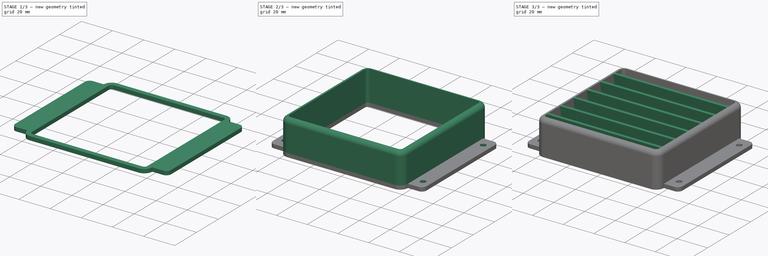
[diagram: build sequence overview — one tinted view per stage of 3, left to right]
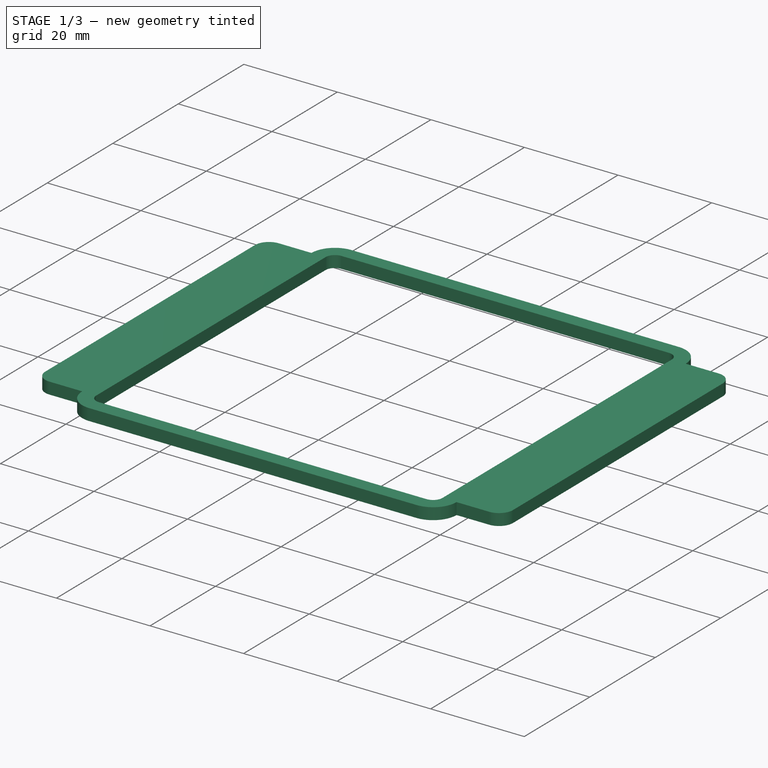
[diagram: stage 1 of 3 — iso view after this stage's code; geometry added in this stage tinted green]
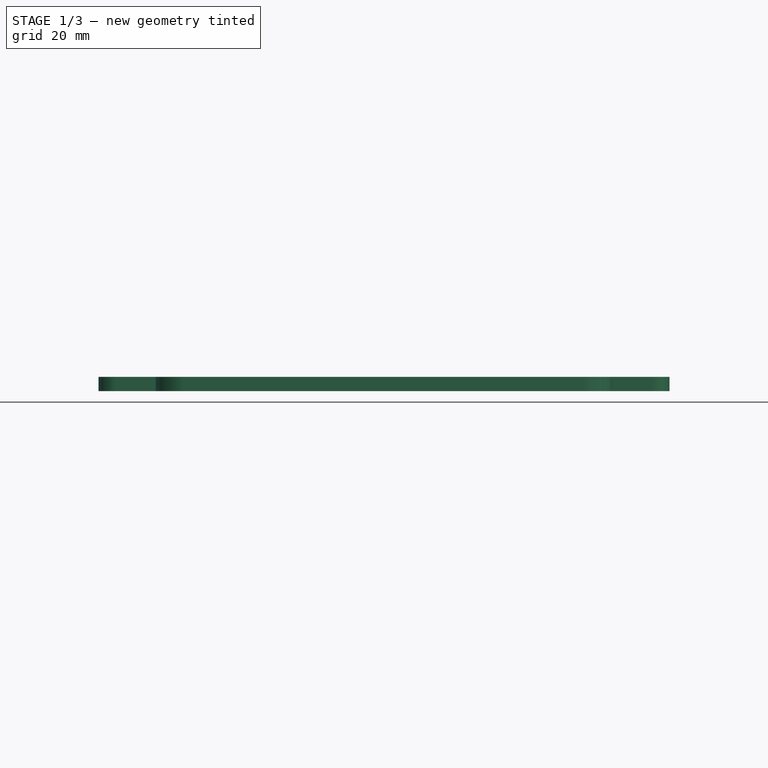
[diagram: stage 1 of 3 — front view after this stage's code; geometry added in this stage tinted green]
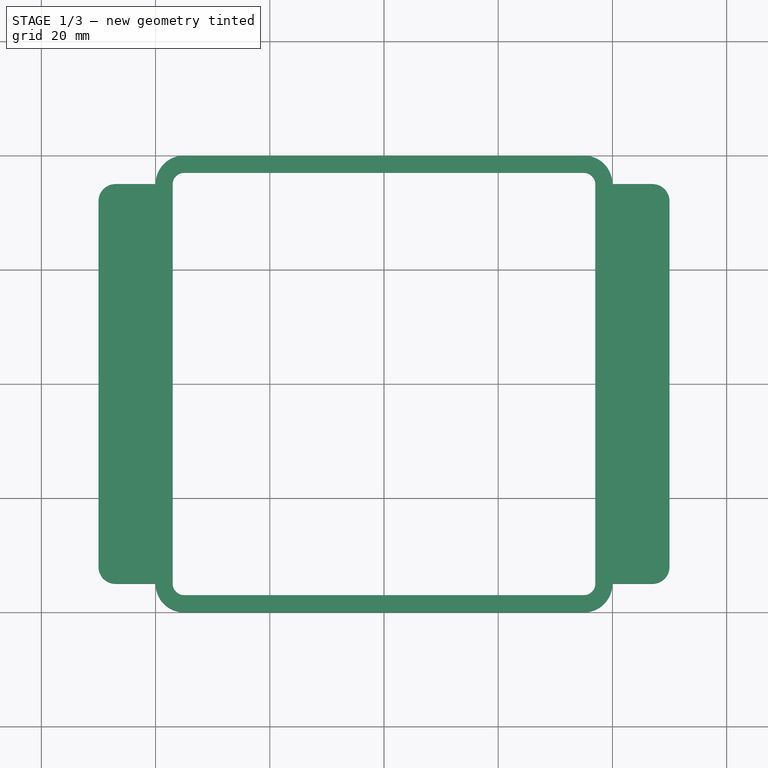
[diagram: stage 1 of 3 — top view after this stage's code; geometry added in this stage tinted green]
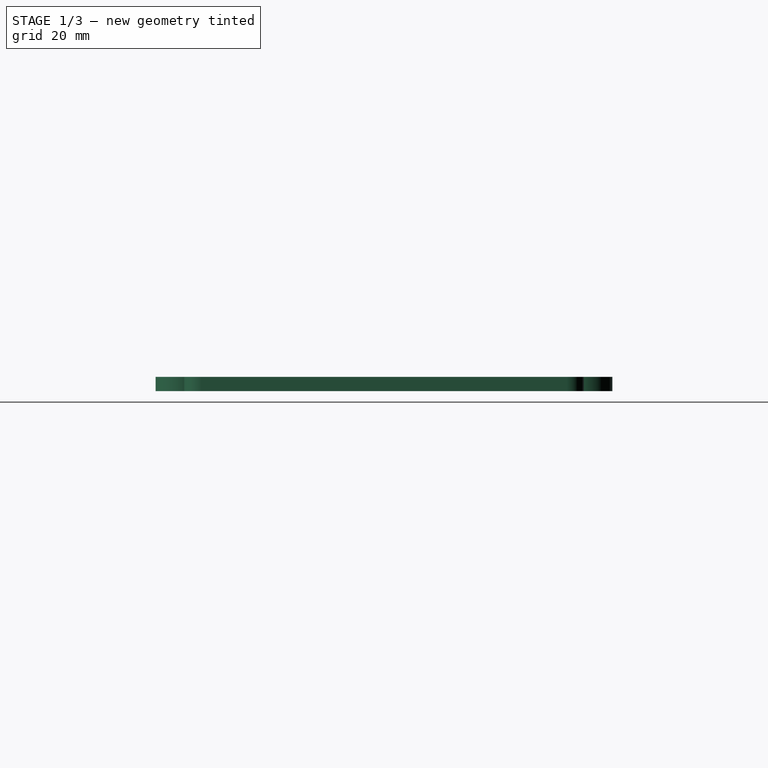
[diagram: stage 1 of 3 — right view after this stage's code; geometry added in this stage tinted green]
FCSTD DOCUMENT  (FreeCAD 0.20R29603 (Git))
Label: backwallVent
License: All rights reserved
LicenseURL: http://en.wikipedia.org/wiki/All_rights_reserved
objects: Sketcher::SketchObject×5, PartDesign::Pad×3, PartDesign::Fillet×2, Part::Part2DObjectPython×1, PartDesign::Pocket×1, PartDesign::LinearPattern×1, PartDesign::Body×1
note: 20 computed .brp shape members not serialized (recipe doc carries the construction recipe); baked Part::Feature solids carry a one-line shape summary decoded from their .brp

FEATURE [Sketcher::SketchObject] Sketch  label="master"
  FullyConstrained = true
  sketch-geometry (27):
    g0: ArcOfCircle CenterX=-35 CenterY=35 CenterZ=0 NormalX=0 NormalY=0 NormalZ=1 AngleXU=0 Radius=5 StartAngle=1.5708 EndAngle=3.14159
    g1: LineSegment StartX=-35 StartY=40 StartZ=0 EndX=35 EndY=40 EndZ=0
    g2: ArcOfCircle CenterX=35 CenterY=35 CenterZ=0 NormalX=0 NormalY=0 NormalZ=1 AngleXU=0 Radius=5 StartAngle=1e-16 EndAngle=1.5708
    g3: LineSegment StartX=40 StartY=35 StartZ=0 EndX=40 EndY=-35 EndZ=0
    g4: ArcOfCircle CenterX=35 CenterY=-35 CenterZ=0 NormalX=0 NormalY=0 NormalZ=1 AngleXU=0 Radius=5 StartAngle=4.71239 EndAngle=6.28319
    g5: LineSegment StartX=35 StartY=-40 StartZ=0 EndX=-35 EndY=-40 EndZ=0
    g6: ArcOfCircle CenterX=-35 CenterY=-35 CenterZ=0 NormalX=0 NormalY=0 NormalZ=1 AngleXU=0 Radius=5 StartAngle=3.14159 EndAngle=4.71239
    g7: LineSegment StartX=-40 StartY=-35 StartZ=0 EndX=-40 EndY=35 EndZ=0
    g8: GeomPoint X=40 Y=-40 Z=0
    g9: ArcOfCircle CenterX=-35 CenterY=35 CenterZ=0 NormalX=0 NormalY=0 NormalZ=1 AngleXU=0 Radius=2 StartAngle=1.5708 EndAngle=3.14159
    g10: LineSegment StartX=-35 StartY=37 StartZ=0 EndX=35 EndY=37 EndZ=0
    g11: ArcOfCircle CenterX=35 CenterY=35 CenterZ=0 NormalX=0 NormalY=0 NormalZ=1 AngleXU=0 Radius=2 StartAngle=-9e-16 EndAngle=1.5708
    g12: LineSegment StartX=37 StartY=35 StartZ=0 EndX=37 EndY=-35 EndZ=0
    g13: ArcOfCircle CenterX=35 CenterY=-35 CenterZ=0 NormalX=0 NormalY=0 NormalZ=1 AngleXU=0 Radius=2 StartAngle=4.71239 EndAngle=6.28319
    g14: LineSegment StartX=35 StartY=-37 StartZ=0 EndX=-35 EndY=-37 EndZ=0
    g15: ArcOfCircle CenterX=-35 CenterY=-35 CenterZ=0 NormalX=0 NormalY=0 NormalZ=1 AngleXU=0 Radius=2 StartAngle=3.14159 EndAngle=4.71239
    g16: LineSegment StartX=-37 StartY=-35 StartZ=0 EndX=-37 EndY=35 EndZ=0
    g17: GeomPoint X=-37 Y=37 Z=0
    g18: GeomPoint X=37 Y=-37 Z=0
    g19: LineSegment StartX=-40 StartY=35 StartZ=0 EndX=-50 EndY=35 EndZ=0
    g20: LineSegment StartX=-50 StartY=35 StartZ=0 EndX=-50 EndY=-35 EndZ=0
    g21: LineSegment StartX=-50 StartY=-35 StartZ=0 EndX=-40 EndY=-35 EndZ=0
    g22: LineSegment StartX=-40 StartY=-35 StartZ=0 EndX=-40 EndY=35 EndZ=0
    g23: LineSegment StartX=40 StartY=35 StartZ=0 EndX=50 EndY=35 EndZ=0
    g24: LineSegment StartX=50 StartY=35 StartZ=0 EndX=50 EndY=-35 EndZ=0
    g25: LineSegment StartX=50 StartY=-35 StartZ=0 EndX=40 EndY=-35 EndZ=0
    g26: LineSegment StartX=40 StartY=-35 StartZ=0 EndX=40 EndY=35 EndZ=0
  constraints (64):
    c: Tangent(g0,g1) = 1.5708
    c: Tangent(g1,g2) = 1.5708
    c: Tangent(g2,g3) = 1.5708
    c: Tangent(g3,g4) = 1.5708
    c: Tangent(g4,g5) = 1.5708
    c: Tangent(g5,g6) = 1.5708
    c: Tangent(g6,g7) = 1.5708
    c: Tangent(g7,g0) = 1.5708
    c: Horizontal(g1)
    c: Horizontal(g5)
    c: Vertical(g3)
    c: Vertical(g7)
    c: Equal(g0,g2)
    c: Equal(g2,g4)
    c: Equal(g4,g6)
    c: PointOnObject(g8,g3)
    c: PointOnObject(g8,g5)
    c: Symmetric(g4,g0,g-1)
    c: Equal(g7,g1)
    c: DistanceX(g0,g2) = 80
    c: Diameter(g0) = 10
    c: Tangent(g9,g10) = 1.5708
    c: Tangent(g10,g11) = 1.5708
    c: Tangent(g11,g12) = 1.5708
    c: Tangent(g12,g13) = 1.5708
    c: Tangent(g13,g14) = 1.5708
    c: Tangent(g14,g15) = 1.5708
    c: Tangent(g15,g16) = 1.5708
    c: Tangent(g16,g9) = 1.5708
    c: Horizontal(g10)
    c: Horizontal(g14)
    c: Vertical(g12)
    c: Vertical(g16)
    c: Equal(g11,g13)
    c: Equal(g13,g15)
    c: PointOnObject(g17,g10)
    c: PointOnObject(g17,g16)
    c: PointOnObject(g18,g12)
    c: PointOnObject(g18,g14)
    c: Symmetric(g13,g9,g-1)
    c: Equal(g16,g10)
    c: DistanceY(g5,g14) = 3
    c: Coincident(g19,g20)
    c: Coincident(g20,g21)
    c: Coincident(g21,g22)
    c: Coincident(g22,g19)
    c: Horizontal(g19)
    c: Horizontal(g21)
    c: Vertical(g20)
    c: Coincident(g19,g0)
    c: Coincident(g21,g6)
    c: Coincident(g23,g24)
    c: Coincident(g24,g25)
    c: Coincident(g25,g26)
    c: Coincident(g26,g23)
    c: Horizontal(g23)
    c: Horizontal(g25)
    c: Vertical(g24)
    c: Coincident(g23,g2)
    c: Coincident(g25,g3)
    c: Equal(g25,g21)
    c: DistanceX(g19,g19) = 10
    c: Vertical(g14,g5)
    c: Horizontal(g15,g6)
FEATURE [Part::Part2DObjectPython] Clone2D  label="master (2D)"  # Draft 2D object (typed FeaturePython)
  Fuse = false
  Objects = -> [Sketch]
  Scale = (1,1,1)
FEATURE [Sketcher::SketchObject] Sketch001
  ExternalGeometry = -> [Clone2D]
  FullyConstrained = true
  MapMode = 5
  Support = -> [XY_Plane]
  sketch-geometry (22):
    g0: LineSegment StartX=-50 StartY=35 StartZ=0 EndX=-40 EndY=35 EndZ=0
    g1: ArcOfCircle CenterX=-35 CenterY=35 CenterZ=0 NormalX=0 NormalY=0 NormalZ=1 AngleXU=0 Radius=5 StartAngle=1.5708 EndAngle=3.14159
    g2: LineSegment StartX=-35 StartY=40 StartZ=0 EndX=35 EndY=40 EndZ=0
    g3: ArcOfCircle CenterX=35 CenterY=35 CenterZ=0 NormalX=0 NormalY=0 NormalZ=1 AngleXU=0 Radius=5 StartAngle=-4.567e-12 EndAngle=1.5708
    g4: LineSegment StartX=40 StartY=35 StartZ=0 EndX=50 EndY=35 EndZ=0
    g5: LineSegment StartX=50 StartY=35 StartZ=0 EndX=50 EndY=-35 EndZ=0
    g6: LineSegment StartX=50 StartY=-35 StartZ=0 EndX=40 EndY=-35 EndZ=0
    g7: ArcOfCircle CenterX=35 CenterY=-35 CenterZ=0 NormalX=0 NormalY=0 NormalZ=1 AngleXU=0 Radius=5 StartAngle=4.71239 EndAngle=6.28319
    g8: LineSegment StartX=35 StartY=-40 StartZ=0 EndX=-35 EndY=-40 EndZ=0
    g9: ArcOfCircle CenterX=-35 CenterY=-35 CenterZ=0 NormalX=0 NormalY=0 NormalZ=1 AngleXU=0 Radius=5 StartAngle=3.14159 EndAngle=4.71239
    g10: LineSegment StartX=-50 StartY=35 StartZ=0 EndX=-50 EndY=-35 EndZ=0
    g11: LineSegment StartX=-50 StartY=-35 StartZ=0 EndX=-40 EndY=-35 EndZ=0
    g12: ArcOfCircle CenterX=-35 CenterY=35 CenterZ=0 NormalX=0 NormalY=0 NormalZ=1 AngleXU=0 Radius=2 StartAngle=1.5708 EndAngle=3.14159
    g13: LineSegment StartX=-35 StartY=37 StartZ=0 EndX=35 EndY=37 EndZ=0
    g14: ArcOfCircle CenterX=35 CenterY=35 CenterZ=0 NormalX=0 NormalY=0 NormalZ=1 AngleXU=0 Radius=2 StartAngle=1.6e-15 EndAngle=1.5708
    g15: LineSegment StartX=37 StartY=35 StartZ=0 EndX=37 EndY=-35 EndZ=0
    g16: ArcOfCircle CenterX=35 CenterY=-35 CenterZ=0 NormalX=0 NormalY=0 NormalZ=1 AngleXU=0 Radius=2 StartAngle=4.71239 EndAngle=6.28319
    g17: LineSegment StartX=35 StartY=-37 StartZ=0 EndX=-35 EndY=-37 EndZ=0
    g18: ArcOfCircle CenterX=-35 CenterY=-35 CenterZ=0 NormalX=0 NormalY=0 NormalZ=1 AngleXU=0 Radius=2 StartAngle=3.14159 EndAngle=4.71239
    g19: LineSegment StartX=-37 StartY=-35 StartZ=0 EndX=-37 EndY=35 EndZ=0
    g20: GeomPoint X=-37 Y=37 Z=0
    g21: GeomPoint X=37 Y=-37 Z=0
  constraints (47):
    c: Coincident(g-3,g0)
    c: Coincident(g0,g-8)
    c: Perpendicular(g0,g1) = 4.71239
    c: Coincident(g1,g-8)
    c: Coincident(g1,g2)
    c: Coincident(g2,g-5)
    c: Tangent(g2,g3) = 1.5708
    c: Coincident(g3,g-5)
    c: Coincident(g3,g4)
    c: Coincident(g4,g-4)
    c: Coincident(g4,g5)
    c: Coincident(g5,g-4)
    c: Coincident(g5,g6)
    c: Coincident(g6,g-6)
    c: Perpendicular(g6,g7) = 4.71239
    c: Coincident(g7,g-6)
    c: Coincident(g7,g8)
    c: Coincident(g8,g-7)
    c: Coincident(g9,g8)
    c: Coincident(g9,g-7)
    c: Coincident(g0,g10)
    c: Coincident(g10,g-3)
    c: Coincident(g10,g11)
    c: Coincident(g11,g-7)
    c: Horizontal(g9,g11)
    c: Tangent(g12,g13) = 1.5708
    c: Tangent(g13,g14) = 1.5708
    c: Tangent(g14,g15) = 1.5708
    c: Tangent(g15,g16) = 1.5708
    c: Tangent(g16,g17) = 1.5708
    c: Tangent(g17,g18) = 1.5708
    c: Tangent(g18,g19) = 1.5708
    c: Tangent(g19,g12) = 1.5708
    c: Horizontal(g13)
    c: Horizontal(g17)
    c: Vertical(g15)
    c: Vertical(g19)
    c: Equal(g12,g14)
    c: Equal(g14,g16)
    c: Equal(g16,g18)
    c: PointOnObject(g20,g13)
    c: PointOnObject(g20,g19)
    c: PointOnObject(g21,g15)
    c: PointOnObject(g21,g17)
    c: Symmetric(g16,g12,g-1)
    c: Equal(g12,g-9)
    c: Coincident(g12,g-9)
FEATURE [PartDesign::Pad] Pad  label="base"
  Direction = (0,0,1)
  Length = 2.5
  Length2 = 10
  Profile = -> Sketch001
  ReferenceAxis = -> Sketch001 [N_Axis]
  Type = 0
FEATURE [PartDesign::Fillet] Fillet  label="cornerFillet"
  Base = -> Pad [Edge32,Edge17,Edge1,Edge14]
  BaseFeature = -> Pad
  Radius = 3
  SupportTransform = false
  UseAllEdges = false
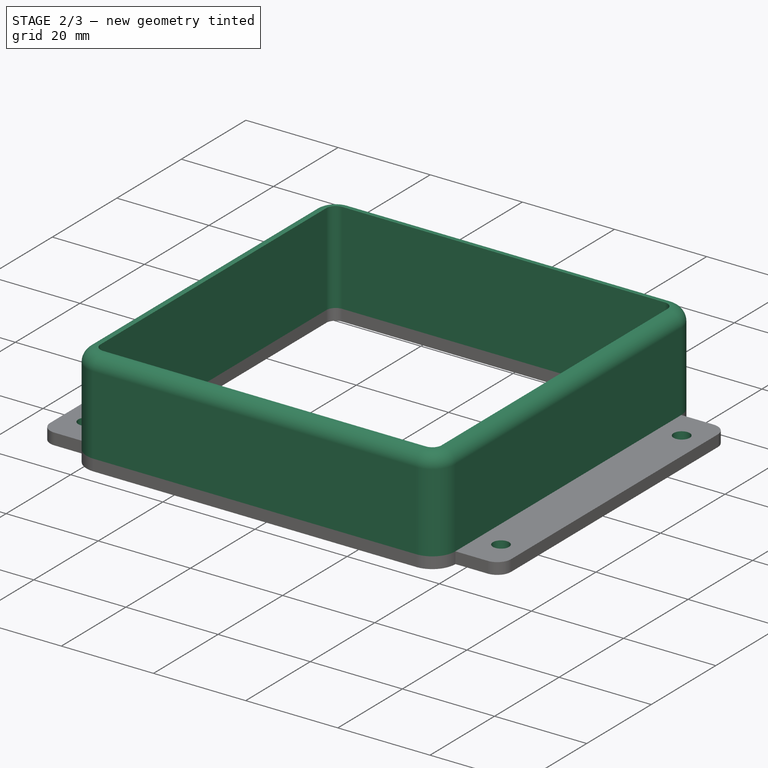
[diagram: stage 2 of 3 — iso view after this stage's code; geometry added in this stage tinted green]
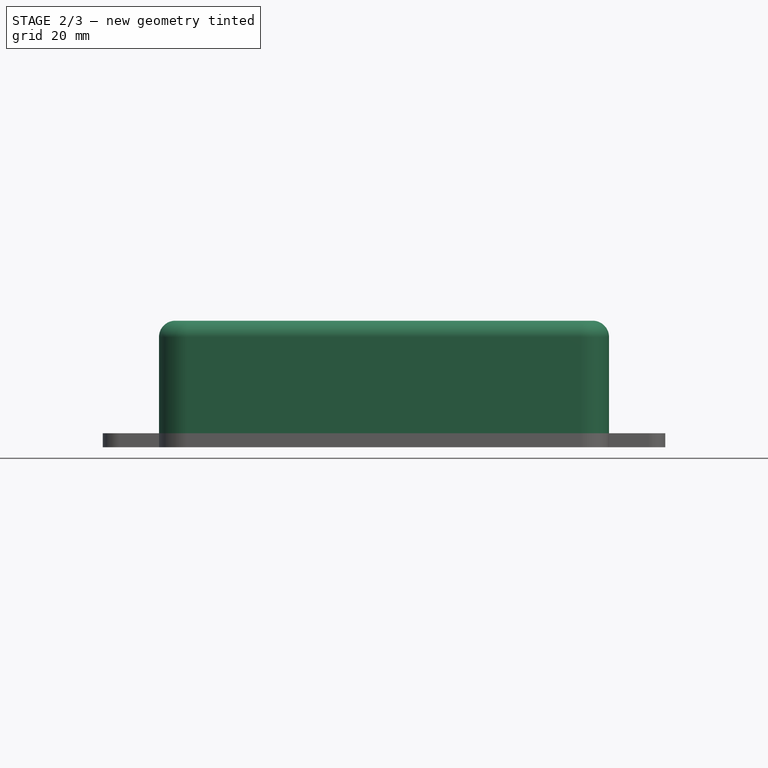
[diagram: stage 2 of 3 — front view after this stage's code; geometry added in this stage tinted green]
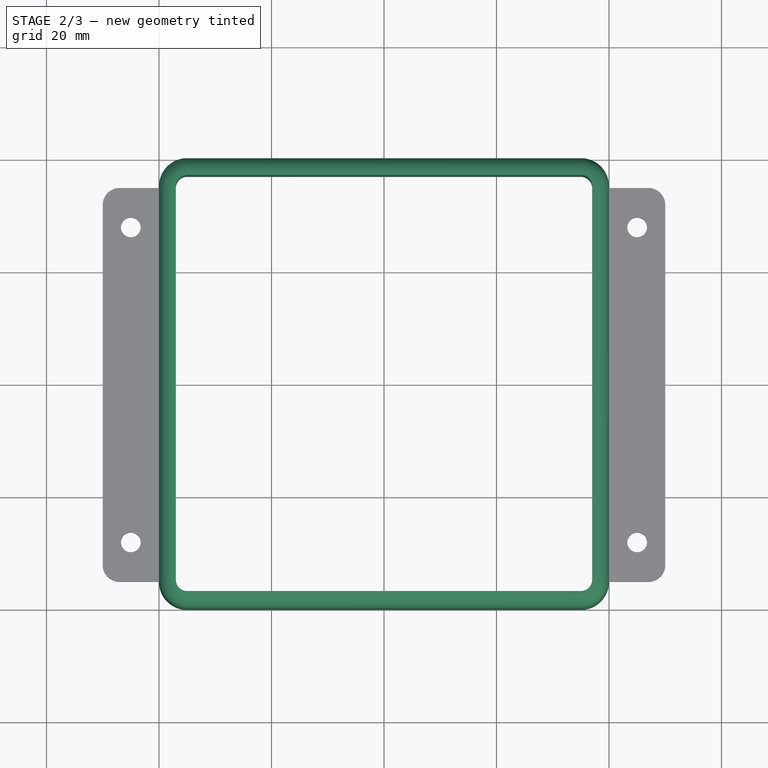
[diagram: stage 2 of 3 — top view after this stage's code; geometry added in this stage tinted green]
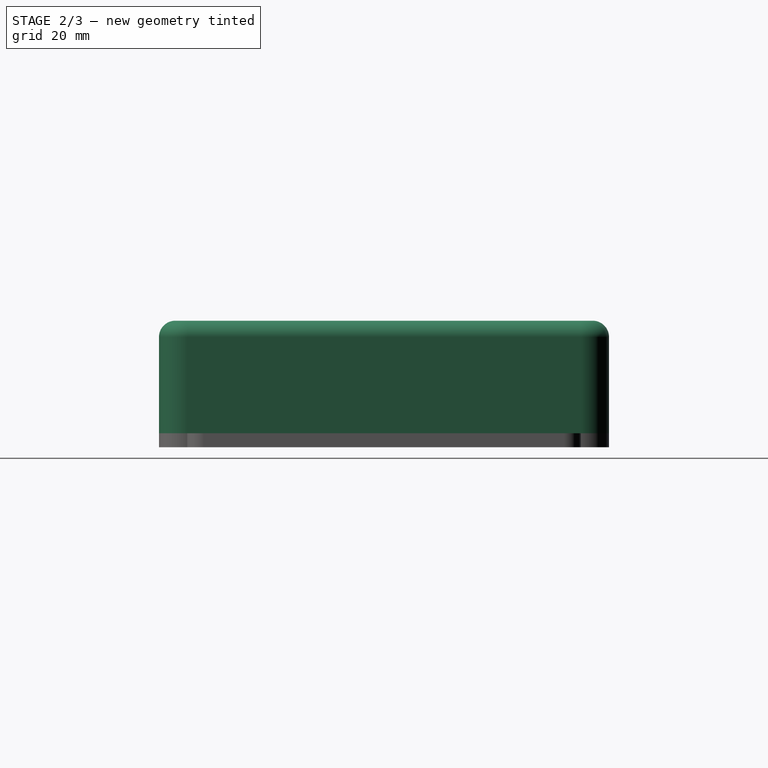
[diagram: stage 2 of 3 — right view after this stage's code; geometry added in this stage tinted green]
FEATURE [Sketcher::SketchObject] Sketch002
  ExternalGeometry = -> [Clone2D]
  FullyConstrained = true
  MapMode = 5
  Support = -> [XY_Plane]
  sketch-geometry (8):
    g0: Circle CenterX=-45 CenterY=28 CenterZ=0 NormalX=0 NormalY=0 NormalZ=1 AngleXU=0 Radius=1.75
    g1: Circle CenterX=-45 CenterY=-28 CenterZ=0 NormalX=0 NormalY=0 NormalZ=1 AngleXU=0 Radius=1.75
    g2: Circle CenterX=45 CenterY=-28 CenterZ=0 NormalX=0 NormalY=0 NormalZ=1 AngleXU=0 Radius=1.75
    g3: Circle CenterX=45 CenterY=28 CenterZ=0 NormalX=0 NormalY=0 NormalZ=1 AngleXU=0 Radius=1.75
    g4: LineSegment StartX=-45 StartY=28 StartZ=0 EndX=45 EndY=28 EndZ=0
    g5: LineSegment StartX=45 StartY=28 StartZ=0 EndX=45 EndY=-28 EndZ=0
    g6: LineSegment StartX=45 StartY=-28 StartZ=0 EndX=-45 EndY=-28 EndZ=0
    g7: LineSegment StartX=-45 StartY=-28 StartZ=0 EndX=-45 EndY=28 EndZ=0
  constraints (18):
    c: Coincident(g4,g5)
    c: Coincident(g5,g6)
    c: Coincident(g6,g7)
    c: Coincident(g7,g4)
    c: Horizontal(g4)
    c: Horizontal(g6)
    c: Vertical(g5)
    c: Symmetric(g4,g5,g-1)
    c: Symmetric(g-3,g-3,g7)
    c: Coincident(g0,g4)
    c: Coincident(g1,g6)
    c: Coincident(g2,g5)
    c: Coincident(g3,g4)
    c: Equal(g0,g1)
    c: Equal(g0,g2)
    c: Equal(g0,g3)
    c: Diameter(g0) = 3.5
    c: DistanceY(g7,g7) = 56
FEATURE [PartDesign::Pocket] Pocket  label="mountingholes_Pocket"
  BaseFeature = -> Fillet
  Direction = (0,0,-1)
  Length = 5
  Length2 = 5
  Midplane = true
  Profile = -> Sketch002
  ReferenceAxis = -> Sketch002 [N_Axis]
  Type = 1
FEATURE [Sketcher::SketchObject] Sketch003
  AttachmentOffset = pos=(0,0,2.5) rot=(0,0,1;0rad)
  ExternalGeometry = -> [Clone2D]
  FullyConstrained = true
  MapMode = 5
  Placement = pos=(0,0,2.5) rot=(0,0,1;0rad)
  Support = -> [XY_Plane]
  sketch-geometry (20):
    g0: ArcOfCircle CenterX=-35 CenterY=35 CenterZ=0 NormalX=0 NormalY=0 NormalZ=1 AngleXU=0 Radius=5 StartAngle=1.5708 EndAngle=3.14159
    g1: LineSegment StartX=-35 StartY=40 StartZ=0 EndX=35 EndY=40 EndZ=0
    g2: ArcOfCircle CenterX=35 CenterY=35 CenterZ=0 NormalX=0 NormalY=0 NormalZ=1 AngleXU=0 Radius=5 StartAngle=3e-16 EndAngle=1.5708
    g3: LineSegment StartX=40 StartY=35 StartZ=0 EndX=40 EndY=-35 EndZ=0
    g4: ArcOfCircle CenterX=35 CenterY=-35 CenterZ=0 NormalX=0 NormalY=0 NormalZ=1 AngleXU=0 Radius=5 StartAngle=4.71239 EndAngle=6.28319
    g5: LineSegment StartX=35 StartY=-40 StartZ=0 EndX=-35 EndY=-40 EndZ=0
    g6: ArcOfCircle CenterX=-35 CenterY=-35 CenterZ=0 NormalX=0 NormalY=0 NormalZ=1 AngleXU=0 Radius=5 StartAngle=3.14159 EndAngle=4.71239
    g7: LineSegment StartX=-40 StartY=-35 StartZ=0 EndX=-40 EndY=35 EndZ=0
    g8: GeomPoint X=-40 Y=40 Z=0
    g9: GeomPoint X=40 Y=-40 Z=0
    g10: ArcOfCircle CenterX=-35 CenterY=35 CenterZ=0 NormalX=0 NormalY=0 NormalZ=1 AngleXU=0 Radius=2 StartAngle=1.5708 EndAngle=3.14159
    g11: LineSegment StartX=-35 StartY=37 StartZ=0 EndX=35 EndY=37 EndZ=0
    g12: ArcOfCircle CenterX=35 CenterY=35 CenterZ=0 NormalX=0 NormalY=0 NormalZ=1 AngleXU=0 Radius=2 StartAngle=4e-16 EndAngle=1.5708
    g13: LineSegment StartX=37 StartY=35 StartZ=0 EndX=37 EndY=-35 EndZ=0
    g14: ArcOfCircle CenterX=35 CenterY=-35 CenterZ=0 NormalX=0 NormalY=0 NormalZ=1 AngleXU=0 Radius=2 StartAngle=4.71239 EndAngle=6.28319
    g15: LineSegment StartX=35 StartY=-37 StartZ=0 EndX=-35 EndY=-37 EndZ=0
    g16: ArcOfCircle CenterX=-35 CenterY=-35 CenterZ=0 NormalX=0 NormalY=0 NormalZ=1 AngleXU=0 Radius=2 StartAngle=3.14159 EndAngle=4.71239
    g17: LineSegment StartX=-37 StartY=-35 StartZ=0 EndX=-37 EndY=35 EndZ=0
    g18: GeomPoint X=-37 Y=37 Z=0
    g19: GeomPoint X=37 Y=-37 Z=0
  constraints (44):
    c: Tangent(g0,g1) = 1.5708
    c: Tangent(g1,g2) = 1.5708
    c: Tangent(g2,g3) = 1.5708
    c: Tangent(g3,g4) = 1.5708
    c: Tangent(g4,g5) = 1.5708
    c: Tangent(g5,g6) = 1.5708
    c: Tangent(g6,g7) = 1.5708
    c: Tangent(g7,g0) = 1.5708
    c: Horizontal(g1)
    c: Horizontal(g5)
    c: Vertical(g3)
    c: Vertical(g7)
    c: Equal(g0,g2)
    c: Equal(g2,g4)
    c: Equal(g4,g6)
    c: PointOnObject(g8,g1)
    c: PointOnObject(g8,g7)
    c: PointOnObject(g9,g3)
    c: PointOnObject(g9,g5)
    c: Symmetric(g0,g4,g-1)
    c: Coincident(g0,g-3)
    c: Equal(g0,g-3)
    c: Tangent(g10,g11) = 1.5708
    c: Tangent(g11,g12) = 1.5708
    c: Tangent(g12,g13) = 1.5708
    c: Tangent(g13,g14) = 1.5708
    c: Tangent(g14,g15) = 1.5708
    c: Tangent(g15,g16) = 1.5708
    c: Tangent(g16,g17) = 1.5708
    c: Tangent(g17,g10) = 1.5708
    c: Horizontal(g11)
    c: Horizontal(g15)
    c: Vertical(g13)
    c: Vertical(g17)
    c: Equal(g10,g12)
    c: Equal(g12,g14)
    c: Equal(g14,g16)
    c: PointOnObject(g18,g11)
    c: PointOnObject(g18,g17)
    c: PointOnObject(g19,g13)
    c: PointOnObject(g19,g15)
    c: Symmetric(g14,g10,g-1)
    c: Coincident(g10,g-4)
    c: Equal(g10,g-4)
FEATURE [PartDesign::Pad] Pad001  label="sidewalls_Pad001"
  BaseFeature = -> Pocket
  Direction = (0,0,1)
  Length = 20
  Length2 = 10
  Profile = -> Sketch003
  ReferenceAxis = -> Sketch003 [N_Axis]
  Type = 0
FEATURE [PartDesign::Fillet] Fillet001  label="frontFillet001"
  Base = -> Pad001 [Edge92]
  BaseFeature = -> Pad001
  Radius = 2.9
  SupportTransform = false
  UseAllEdges = false
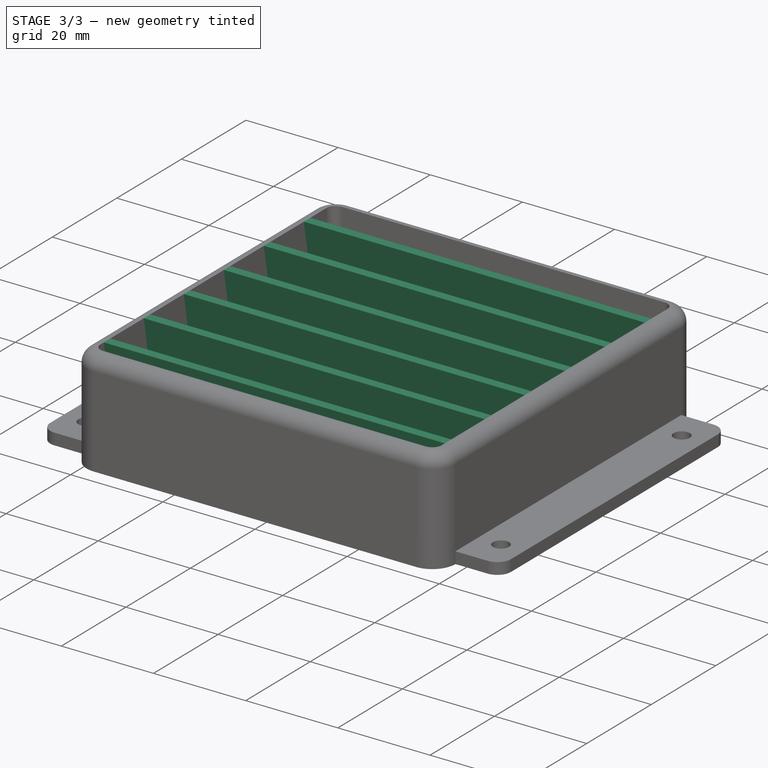
[diagram: stage 3 of 3 — iso view after this stage's code; geometry added in this stage tinted green]
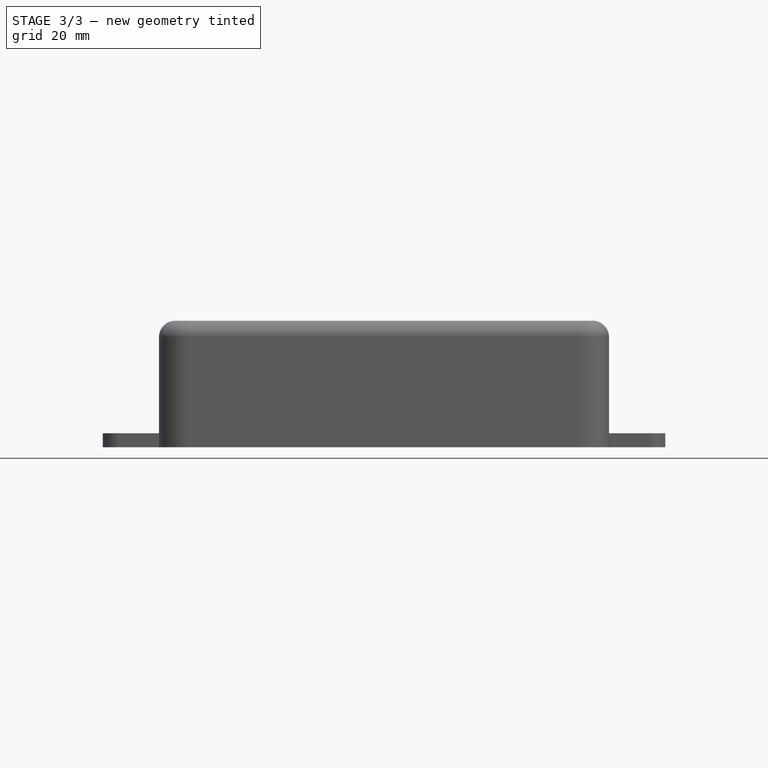
[diagram: stage 3 of 3 — front view after this stage's code; geometry added in this stage tinted green]
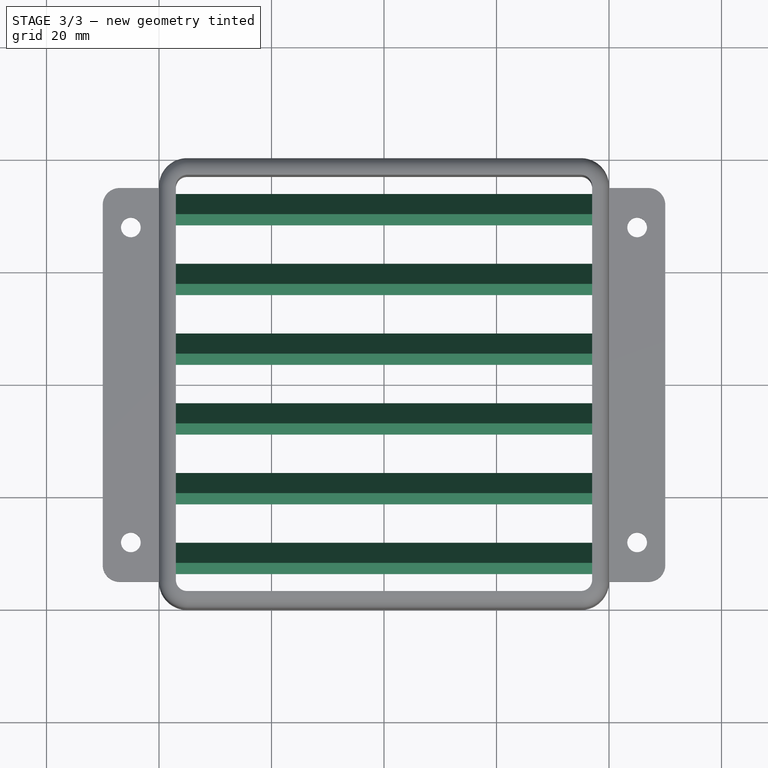
[diagram: stage 3 of 3 — top view after this stage's code; geometry added in this stage tinted green]
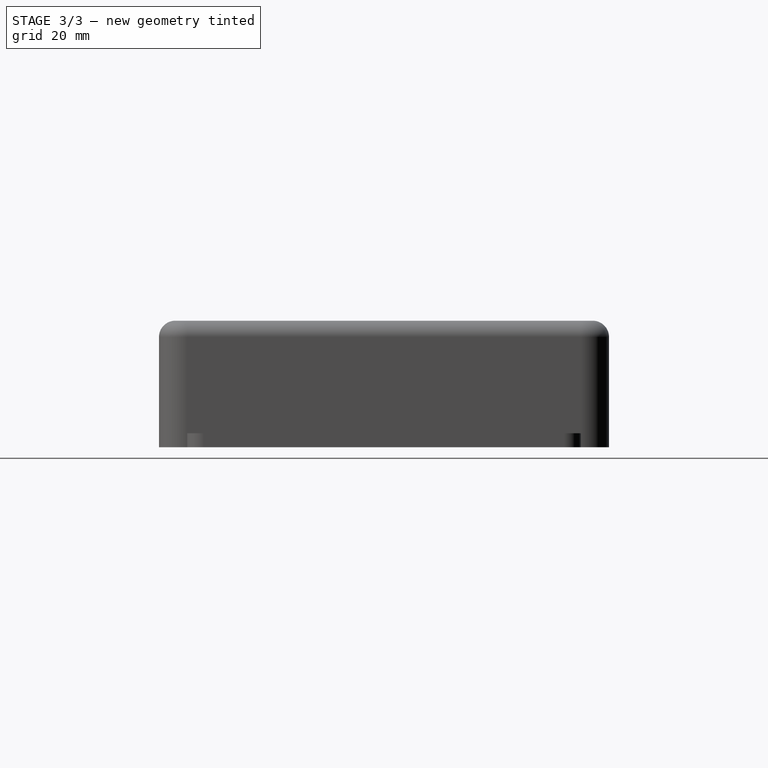
[diagram: stage 3 of 3 — right view after this stage's code; geometry added in this stage tinted green]
FEATURE [Sketcher::SketchObject] Sketch004
  AttachmentOffset = pos=(0,0,-37) rot=(0,0,1;0rad)
  ExternalGeometry = -> [Fillet001]
  FullyConstrained = true
  MapMode = 5
  Placement = pos=(-37,8.2e-15,-8.2e-15) rot=(0.57735,0.57735,0.57735;2.0944rad)
  Support = -> [YZ_Plane]
  sketch-geometry (4):
    g0: LineSegment StartX=33.9674 StartY=0 StartZ=0 EndX=30 EndY=22.5 EndZ=0
    g1: LineSegment StartX=30 StartY=22.5 StartZ=0 EndX=28 EndY=22.5 EndZ=0
    g2: LineSegment StartX=28 StartY=22.5 StartZ=0 EndX=31.9674 EndY=0 EndZ=0
    g3: LineSegment StartX=31.9674 StartY=0 StartZ=0 EndX=33.9674 EndY=0 EndZ=0
  constraints (12):
    c: PointOnObject(g0,g-1)
    c: PointOnObject(g0,g-4)
    c: Coincident(g0,g1)
    c: PointOnObject(g1,g-4)
    c: Coincident(g1,g2)
    c: PointOnObject(g2,g-1)
    c: Coincident(g2,g3)
    c: Coincident(g3,g0)
    c: Parallel(g0,g2)
    c: DistanceX(g3,g3) = 2
    c: Angle(g2,g-1) = 1.39626
    c: DistanceX(g0,g-5) = 7
FEATURE [PartDesign::Pad] Pad002
  BaseFeature = -> Fillet001
  Direction = (1,-2e-16,3e-16)
  Length = 74
  Length2 = 10
  Profile = -> Sketch004
  ReferenceAxis = -> Sketch004 [N_Axis]
  Type = 0
FEATURE [PartDesign::LinearPattern] LinearPattern
  BaseFeature = -> Pad002
  Direction = -> Sketch004 [H_Axis]
  Length = 62
  Occurrences = 6
  Originals = -> [Pad002]
  Reversed = true
FEATURE [PartDesign::Body] Body  label="Ventilation"
  Group = -> [Sketch001,Clone2D,Pad,Fillet,Sketch002,Pocket,Sketch003,Pad001,Fillet001,Sketch004,Pad002,LinearPattern]
  Origin = -> Origin
  Tip = -> LinearPattern
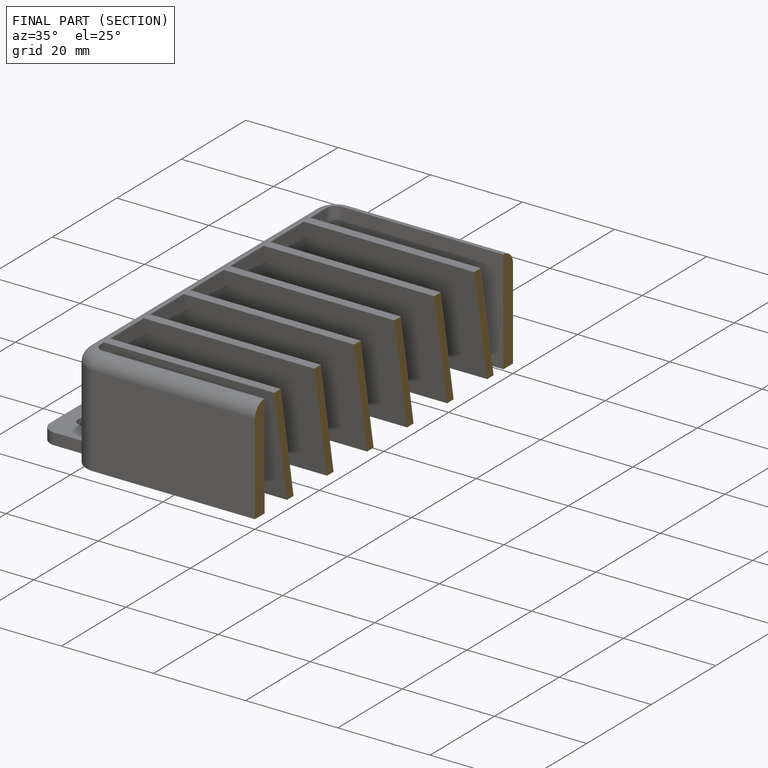
[diagram: finished part — half-section view (interior)]
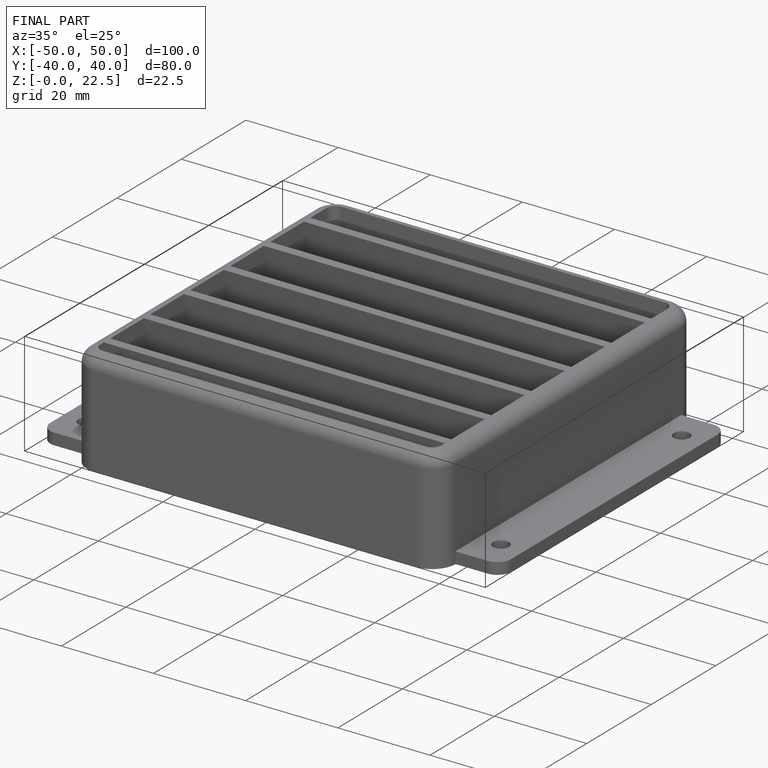
[diagram: finished part — iso view with bounding-box wireframe]
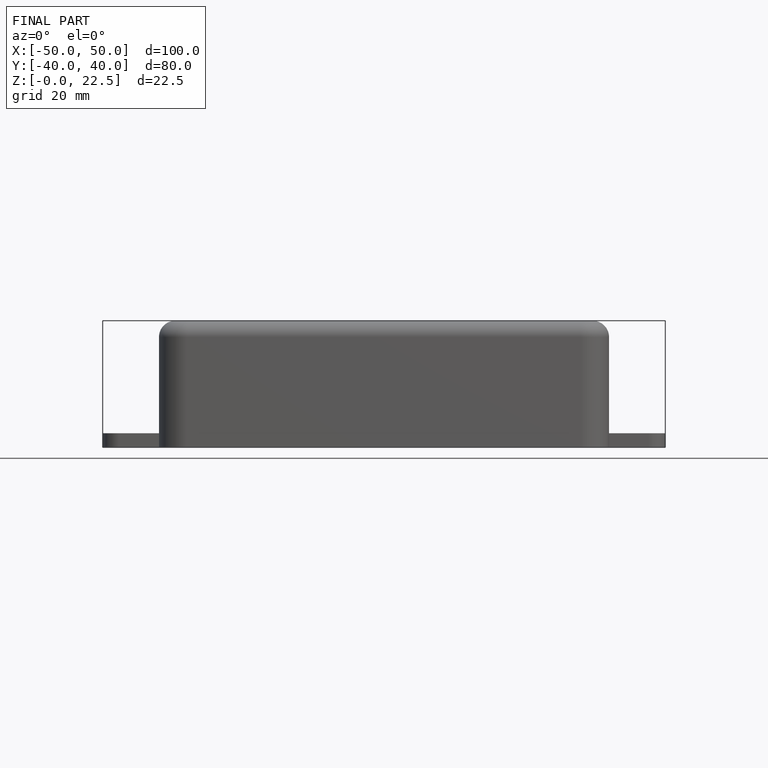
[diagram: finished part — front view with bounding-box wireframe]
